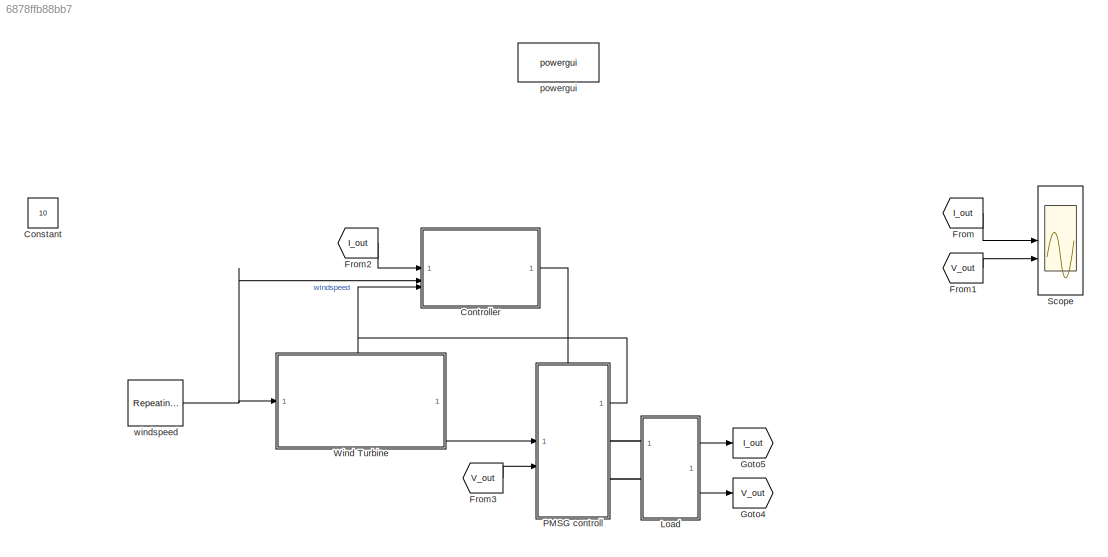
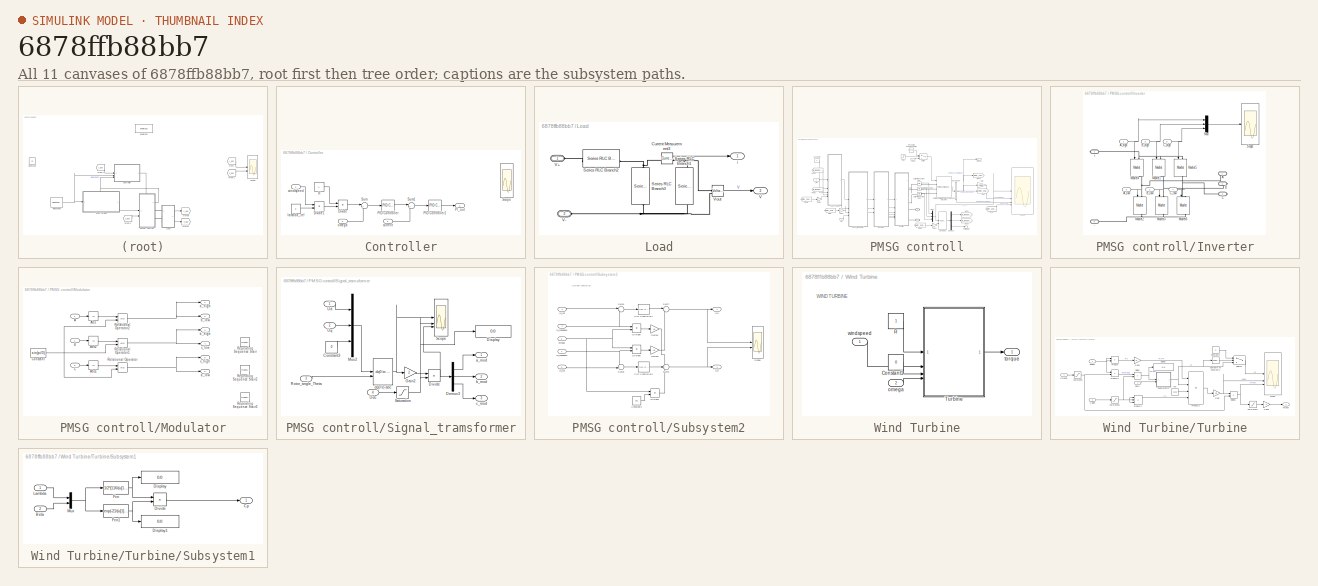
[diagram: thumbnail index - all 11 canvases of the model, root first then tree order]
MODEL slx_6878ffb88bb7
KIND model
CONFIG AbsTol = auto
CONFIG EnableMultiTasking = off
CONFIG FixedStep = auto
CONFIG InitFcn = Ld=0.3;\nLq=0.2;\nRs=2;\n \np=1;\nPsi=0.2;\n \nJ=0.0005;\nFF=0.0001;\n \nKP_Id=1.28;\nKI_Id=16.21;\nKP_Iq=0.94;\nKI_Iq=4.90;\n \nKP_w=0.0784880455322167;\nKI_w=0.0288211791619406;\n \nf_pwm=1000;\nUdc=50;\nNs=1;\nNp=1;\nR1=0.29;\nC0=2100;\nCv=623;\nR2=1.92;\nC2=172;\n\n%data_omega = load('max_CP_omega.mat');\n\n%max_CP_omega = data_omega.max_CP_omega;\n\n%max_CP_omega_param = Simulink.Parameter(max_CP_omega);\n\n%max_CP_omega_para...<+45ch>
CONFIG MaxStep = auto
CONFIG MinStep = auto
CONFIG RelTol = 1e-3
CONFIG SampleTimeConstraint = Unconstrained
CONFIG SolverName = VariableStepAuto
CONFIG StartTime = 0.0
CONFIG StopTime = 5
BLOCK [Constant] Constant
  Value = 10
BLOCK [SubSystem] Controller
BLOCK [Product] Controller/Divide
  Inputs = /*
BLOCK [Product] Controller/Divide1
  Inputs = **
  NameLocation = top
BLOCK [Reference] Controller/PID Controller  REF=slpidlib/PID Controller
  LibrarySourceBlock = simulink/Continuous/PID Controller
  SourceBlock = slpidlib/PID Controller
  SourceType = PID 1dof
BLOCK [Reference] Controller/PID Controller1  REF=slpidlib/PID Controller
  LibrarySourceBlock = simulink/Continuous/PID Controller
  SourceBlock = slpidlib/PID Controller
  SourceType = PID 1dof
BLOCK [Outport] Controller/PI_out
BLOCK [Constant] Controller/R
BLOCK [Scope] Controller/Scope
  Floating = off
  NumInputPorts = 5
  ScopeSpecificationString = Simulink.scopes.TimeScopeBlockCfg('CurrentConfiguration', extmgr.ConfigurationSet(extmgr.Configuration('Core','General UI',true),extmgr.Configuration('Core','Source UI',true),extmgr.Configuration('Sources','WiredSimulink',true,'DataLoggingVariableName','ScopeData3'),extmgr.Configuration('Visuals','Time Domain',true,'SerializedDisplays',{struct('MinYLimReal','70.00000','MaxYLimReal','90.00000','YLa...<+4853ch>
BLOCK [Sum] Controller/Sum
  Inputs = |+-
BLOCK [Sum] Controller/Sum1
  Inputs = |+-
BLOCK [Inport] Controller/current
BLOCK [Constant] Controller/lambda_ref
  Value = 8
BLOCK [Inport] Controller/omega
  Port = 3
BLOCK [Inport] Controller/windspeed
  Port = 2
BLOCK [From] From
  GotoTag = I_out
BLOCK [From] From1
  GotoTag = V_out
BLOCK [From] From2
  GotoTag = I_out
BLOCK [From] From3
  GotoTag = V_out
BLOCK [Goto] Goto4
  GotoTag = V_out
BLOCK [Goto] Goto5
  GotoTag = I_out
BLOCK [SubSystem] Load
BLOCK [Reference] Load/ Vout  REF=spsVoltageMeasurementLib/Voltage Measurement
  LibrarySourceBlock = sps_lib/Sensors and Measurements/Voltage Measurement
  SourceBlock = spsVoltageMeasurementLib/Voltage Measurement
  SourceType = Voltage Measurement
  UserDataPersistent = on
BLOCK [Reference] Load/Current Measurement3  REF=spsCurrentMeasurementLib/Current Measurement
  LibrarySourceBlock = sps_lib/Sensors and Measurements/Current Measurement
  SourceBlock = spsCurrentMeasurementLib/Current Measurement
  SourceType = Current Measurement
  UserDataPersistent = on
BLOCK [Reference] Load/Series RLC Branch1  REF=spsSeriesRLCBranchLib/Series RLC Branch
  LibrarySourceBlock = sps_lib/Passives/Series RLC Branch
  NameLocation = left
  SourceBlock = spsSeriesRLCBranchLib/Series RLC Branch
  SourceType = Series RLC Branch
BLOCK [Reference] Load/Series RLC Branch2  REF=spsSeriesRLCBranchLib/Series RLC Branch
  LibrarySourceBlock = sps_lib/Passives/Series RLC Branch
  SourceBlock = spsSeriesRLCBranchLib/Series RLC Branch
  SourceType = Series RLC Branch
BLOCK [Reference] Load/Series RLC Branch3  REF=spsSeriesRLCBranchLib/Series RLC Branch
  LibrarySourceBlock = sps_lib/Passives/Series RLC Branch
  NameLocation = left
  SourceBlock = spsSeriesRLCBranchLib/Series RLC Branch
  SourceType = Series RLC Branch
BLOCK [Outport] Load/V
  Port = 2
BLOCK [PMIOPort] Load/V+
  Side = Left
BLOCK [PMIOPort] Load/V-
  Port = 2
  Side = Left
BLOCK [Outport] Load/i
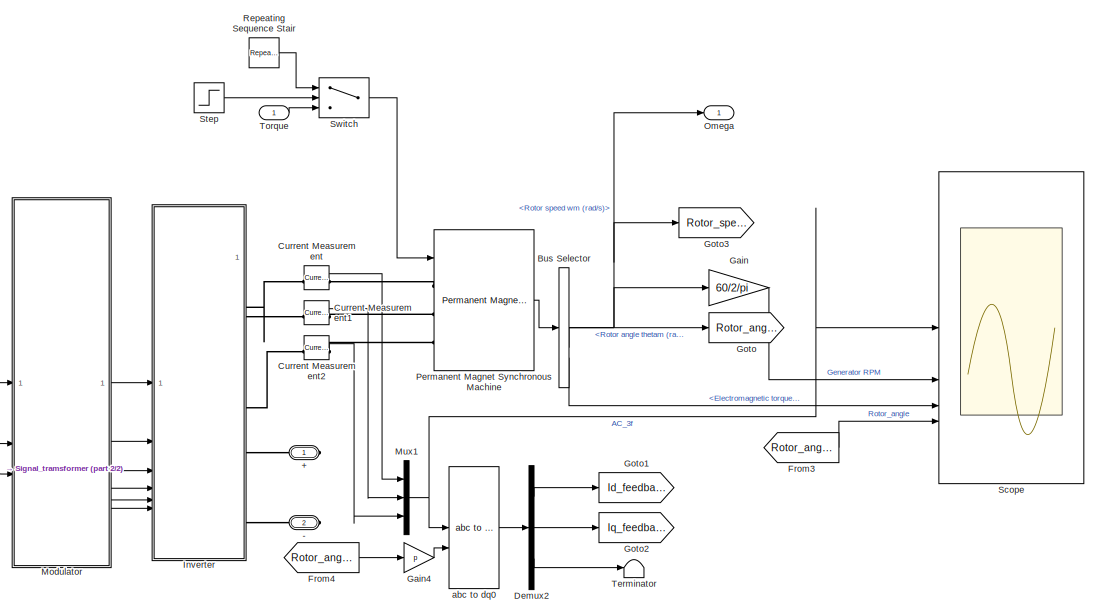
[diagram: PMSG controll - part 1/2, center side, full height]
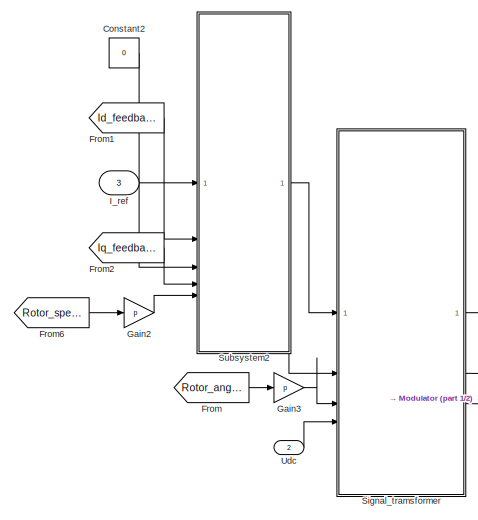
[diagram: PMSG controll - part 2/2, left side, full height]
BLOCK [SubSystem] PMSG controll
  PortSchema = {"entries":[{"content":{"sides":[{"content":{"connectorIds":["In1","In2"]},"type":"ConnectorPlacement.EquallySpacedRectSide","uuid":"6ff45732-1fbe-44e6-bbf0-a97c0cfc251c"},{"content":{"connectorIds":["Out1","RConn1","RConn2"],"side":"RIGHT"},"type":"ConnectorPlacement.EquallySpacedRectSide","uuid":"615f7fbd-60ca-4bdf-8315-88a0e11d104a"},{"content":{"connectorIds":["In3"],"side":"TOP"},"type":"Conn...<+269ch>
BLOCK [PMIOPort] PMSG controll/+
  Side = Right
BLOCK [PMIOPort] PMSG controll/-
  Port = 2
  Side = Right
BLOCK [BusSelector] PMSG controll/Bus Selector
  OutputSignals = Rotor speed wm (rad/s),Rotor angle thetam (rad),Electromagnetic torque Te (N*m)
BLOCK [Constant] PMSG controll/Constant2
  Value = 0
BLOCK [Reference] PMSG controll/Current Measurement  REF=spsCurrentMeasurementLib/Current Measurement
  LibrarySourceBlock = sps_lib/Sensors and Measurements/Current Measurement
  SourceBlock = spsCurrentMeasurementLib/Current Measurement
  SourceType = Current Measurement
  UserDataPersistent = on
BLOCK [Reference] PMSG controll/Current Measurement1  REF=spsCurrentMeasurementLib/Current Measurement
  LibrarySourceBlock = sps_lib/Sensors and Measurements/Current Measurement
  SourceBlock = spsCurrentMeasurementLib/Current Measurement
  SourceType = Current Measurement
  UserDataPersistent = on
BLOCK [Reference] PMSG controll/Current Measurement2  REF=spsCurrentMeasurementLib/Current Measurement
  LibrarySourceBlock = sps_lib/Sensors and Measurements/Current Measurement
  SourceBlock = spsCurrentMeasurementLib/Current Measurement
  SourceType = Current Measurement
  UserDataPersistent = on
BLOCK [Demux] PMSG controll/Demux2
  Outputs = 3
BLOCK [From] PMSG controll/From
  GotoTag = Rotor_angle
BLOCK [From] PMSG controll/From1
  GotoTag = Id_feedback
BLOCK [From] PMSG controll/From2
  GotoTag = Iq_feedback
BLOCK [From] PMSG controll/From3
  GotoTag = Rotor_angle
BLOCK [From] PMSG controll/From4
  GotoTag = Rotor_angle
BLOCK [From] PMSG controll/From6
  GotoTag = Rotor_speed
BLOCK [Gain] PMSG controll/Gain
  Gain = 60/2/pi
BLOCK [Gain] PMSG controll/Gain2
  Gain = p
BLOCK [Gain] PMSG controll/Gain3
  Gain = p
BLOCK [Gain] PMSG controll/Gain4
  Gain = p
BLOCK [Goto] PMSG controll/Goto
  GotoTag = Rotor_angle
BLOCK [Goto] PMSG controll/Goto1
  GotoTag = Id_feedback
BLOCK [Goto] PMSG controll/Goto2
  GotoTag = Iq_feedback
BLOCK [Goto] PMSG controll/Goto3
  GotoTag = Rotor_speed
BLOCK [Inport] PMSG controll/I_ref
  Port = 3
BLOCK [SubSystem] PMSG controll/Inverter
BLOCK [Inport] PMSG controll/Inverter/ B_high
  Port = 3
BLOCK [PMIOPort] PMSG controll/Inverter/+
  Port = 4
  Side = Right
BLOCK [PMIOPort] PMSG controll/Inverter/-
  Port = 5
  Side = Right
BLOCK [PMIOPort] PMSG controll/Inverter/A
  Side = Right
BLOCK [Inport] PMSG controll/Inverter/A_high
BLOCK [Inport] PMSG controll/Inverter/A_low
  Port = 6
BLOCK [PMIOPort] PMSG controll/Inverter/B
  Port = 2
  Side = Right
BLOCK [Inport] PMSG controll/Inverter/B_low
  Port = 2
BLOCK [PMIOPort] PMSG controll/Inverter/C
  Port = 3
  Side = Right
BLOCK [Inport] PMSG controll/Inverter/C_high
  Port = 5
BLOCK [Inport] PMSG controll/Inverter/C_low
  Port = 4
BLOCK [Reference] PMSG controll/Inverter/Mosfet1  REF=spsMosfetLib/Mosfet
  LibrarySourceBlock = sps_lib/Power Electronics/Mosfet
  NameLocation = left
  SourceBlock = spsMosfetLib/Mosfet
  SourceType = Mosfet
BLOCK [Reference] PMSG controll/Inverter/Mosfet2  REF=spsMosfetLib/Mosfet
  LibrarySourceBlock = sps_lib/Power Electronics/Mosfet
  NameLocation = left
  SourceBlock = spsMosfetLib/Mosfet
  SourceType = Mosfet
BLOCK [Reference] PMSG controll/Inverter/Mosfet3  REF=spsMosfetLib/Mosfet
  LibrarySourceBlock = sps_lib/Power Electronics/Mosfet
  NameLocation = left
  SourceBlock = spsMosfetLib/Mosfet
  SourceType = Mosfet
BLOCK [Reference] PMSG controll/Inverter/Mosfet4  REF=spsMosfetLib/Mosfet
  LibrarySourceBlock = sps_lib/Power Electronics/Mosfet
  NameLocation = left
  SourceBlock = spsMosfetLib/Mosfet
  SourceType = Mosfet
BLOCK [Reference] PMSG controll/Inverter/Mosfet5  REF=spsMosfetLib/Mosfet
  LibrarySourceBlock = sps_lib/Power Electronics/Mosfet
  NameLocation = left
  SourceBlock = spsMosfetLib/Mosfet
  SourceType = Mosfet
BLOCK [Reference] PMSG controll/Inverter/Mosfet6  REF=spsMosfetLib/Mosfet
  LibrarySourceBlock = sps_lib/Power Electronics/Mosfet
  NameLocation = left
  SourceBlock = spsMosfetLib/Mosfet
  SourceType = Mosfet
BLOCK [Mux] PMSG controll/Inverter/Mux
  DisplayOption = bar
  Inputs = 3
BLOCK [Scope] PMSG controll/Inverter/Scope
  Floating = off
  NumInputPorts = 1
  ScopeSpecificationString = Simulink.scopes.TimeScopeBlockCfg('CurrentConfiguration', extmgr.ConfigurationSet(extmgr.Configuration('Core','General UI',true),extmgr.Configuration('Core','Source UI',true),extmgr.Configuration('Sources','WiredSimulink',true,'DataLoggingVariableName','ScopeData1'),extmgr.Configuration('Visuals','Time Domain',true,'SerializedDisplays',{struct('MinYLimReal','-0.04809','MaxYLimReal','1.0241','YLabe...<+1454ch>
BLOCK [SubSystem] PMSG controll/Modulator
BLOCK [Inport] PMSG controll/Modulator/A
BLOCK [Abs] PMSG controll/Modulator/Abs
  SaturateOnIntegerOverflow = off
BLOCK [Abs] PMSG controll/Modulator/Abs1
  SaturateOnIntegerOverflow = off
BLOCK [Abs] PMSG controll/Modulator/Abs2
  SaturateOnIntegerOverflow = off
BLOCK [Inport] PMSG controll/Modulator/B
  Port = 2
BLOCK [Inport] PMSG controll/Modulator/C
  Port = 3
BLOCK [Constant] PMSG controll/Modulator/Constant
  Value = sin(pi/3)
BLOCK [RelationalOperator] PMSG controll/Modulator/Relational Operator
  InputSameDT = off
  OutDataTypeStr = boolean
  RndMeth = Simplest
BLOCK [RelationalOperator] PMSG controll/Modulator/Relational Operator1
  InputSameDT = off
  OutDataTypeStr = boolean
  RndMeth = Simplest
BLOCK [RelationalOperator] PMSG controll/Modulator/Relational Operator2
  InputSameDT = off
  OutDataTypeStr = boolean
  RndMeth = Simplest
BLOCK [Reference] PMSG controll/Modulator/Repeating Sequence Stair  REF=simulink/Sources/Repeating
Sequence
Stair
  SourceBlock = simulink/Sources/Repeating\nSequence\nStair
  SourceType = Repeating Sequence Stair
BLOCK [Reference] PMSG controll/Modulator/Repeating Sequence Stair2  REF=simulink/Sources/Repeating
Sequence
Stair
  SourceBlock = simulink/Sources/Repeating\nSequence\nStair
  SourceType = Repeating Sequence Stair
BLOCK [Reference] PMSG controll/Modulator/Repeating Sequence Stair3  REF=simulink/Sources/Repeating
Sequence
Stair
  SourceBlock = simulink/Sources/Repeating\nSequence\nStair
  SourceType = Repeating Sequence Stair
BLOCK [Outport] PMSG controll/Modulator/a_high
BLOCK [Outport] PMSG controll/Modulator/a_low
  Port = 6
BLOCK [Outport] PMSG controll/Modulator/b_high
  Port = 3
BLOCK [Outport] PMSG controll/Modulator/b_low
  Port = 2
BLOCK [Outport] PMSG controll/Modulator/c_high
  Port = 5
BLOCK [Outport] PMSG controll/Modulator/c_low
  Port = 4
BLOCK [Mux] PMSG controll/Mux1
  DisplayOption = bar
  Inputs = 3
BLOCK [Outport] PMSG controll/Omega
BLOCK [Reference] PMSG controll/Permanent Magnet Synchronous Machine  REF=spsPermanentMagnetSynchronousMachineLib/Permanent Magnet
Synchronous Machine
  LibrarySourceBlock = sps_lib/Electrical Machines/Permanent Magnet\nSynchronous Machine
  SourceBlock = spsPermanentMagnetSynchronousMachineLib/Permanent Magnet\nSynchronous Machine
  SourceType = Permanent Magnet Synchronous Machine
BLOCK [Reference] PMSG controll/Repeating Sequence Stair  REF=simulink/Sources/Repeating
Sequence
Stair
  SourceBlock = simulink/Sources/Repeating\nSequence\nStair
  SourceType = Repeating Sequence Stair
BLOCK [Scope] PMSG controll/Scope
  Floating = off
  NumInputPorts = 4
  ScopeSpecificationString = Simulink.scopes.TimeScopeBlockCfg('CurrentConfiguration', extmgr.ConfigurationSet(extmgr.Configuration('Core','General UI',true),extmgr.Configuration('Core','Source UI',true),extmgr.Configuration('Sources','WiredSimulink',true,'DataLoggingVariableName','ScopeData1'),extmgr.Configuration('Visuals','Time Domain',true,'SerializedDisplays',{struct('MinYLimReal','-1.22156','MaxYLimReal','1.34994','YLab...<+3573ch>
BLOCK [SubSystem] PMSG controll/Signal_tramsformer
BLOCK [Constant] PMSG controll/Signal_tramsformer/Constant3
  Value = 0
BLOCK [Demux] PMSG controll/Signal_tramsformer/Demux3
  Outputs = 3
BLOCK [Display] PMSG controll/Signal_tramsformer/Display
  Decimation = 1
BLOCK [Product] PMSG controll/Signal_tramsformer/Divide
  Inputs = */
BLOCK [Gain] PMSG controll/Signal_tramsformer/Gain2
  Gain = 2
BLOCK [Mux] PMSG controll/Signal_tramsformer/Mux2
  DisplayOption = bar
  Inputs = 3
BLOCK [Inport] PMSG controll/Signal_tramsformer/Rotor_angle_Theta
  Port = 3
BLOCK [Saturate] PMSG controll/Signal_tramsformer/Saturation
  LowerLimit = 1e-1
  UpperLimit = inf
BLOCK [Scope] PMSG controll/Signal_tramsformer/Scope
  Floating = off
  NumInputPorts = 3
  ScopeSpecificationString = Simulink.scopes.TimeScopeBlockCfg('CurrentConfiguration', extmgr.ConfigurationSet(extmgr.Configuration('Core','General UI',true),extmgr.Configuration('Core','Source UI',true),extmgr.Configuration('Sources','WiredSimulink',true,'DataLoggingVariableName','ScopeData2'),extmgr.Configuration('Visuals','Time Domain',true,'SerializedDisplays',{struct('MinYLimReal','-95829.11129','MaxYLimReal','165523.010...<+2887ch>
BLOCK [Inport] PMSG controll/Signal_tramsformer/Ud
BLOCK [Inport] PMSG controll/Signal_tramsformer/Udc
  Port = 4
BLOCK [Inport] PMSG controll/Signal_tramsformer/Uq
  Port = 2
BLOCK [Outport] PMSG controll/Signal_tramsformer/a_mod
BLOCK [Outport] PMSG controll/Signal_tramsformer/b_mod
  Port = 2
BLOCK [Outport] PMSG controll/Signal_tramsformer/c_mod
  Port = 3
BLOCK [Reference] PMSG controll/Signal_tramsformer/dq0 to abc  REF=spsdq0toabcLib/dq0 to abc
  LibrarySourceBlock = sps_lib/Control/dq0 to abc
  SourceBlock = spsdq0toabcLib/dq0 to abc
  SourceType = dq0 to abc Transformation
BLOCK [Step] PMSG controll/Step
  After = 0
  Before = 1
  SampleTime = 0
  Time = 5
BLOCK [SubSystem] PMSG controll/Subsystem2
BLOCK [Constant] PMSG controll/Subsystem2/Constant3
  Value = Psi
BLOCK [Product] PMSG controll/Subsystem2/Divide4
  Inputs = **
BLOCK [Product] PMSG controll/Subsystem2/Divide5
  Inputs = **
BLOCK [Product] PMSG controll/Subsystem2/Divide6
  Inputs = **
BLOCK [Gain] PMSG controll/Subsystem2/Gain10
  Gain = Lq
BLOCK [Gain] PMSG controll/Subsystem2/Gain11
  Gain = Ld
BLOCK [Inport] PMSG controll/Subsystem2/Id_feedback
  Port = 2
BLOCK [Inport] PMSG controll/Subsystem2/Id_ref
BLOCK [Inport] PMSG controll/Subsystem2/Iq_feedback
  Port = 4
BLOCK [Inport] PMSG controll/Subsystem2/Iq_ref
  Port = 3
BLOCK [Reference] PMSG controll/Subsystem2/PID Controller1  REF=slpidlib/PID Controller
  SourceBlock = slpidlib/PID Controller
  SourceType = PID 1dof
BLOCK [Reference] PMSG controll/Subsystem2/PID Controller3  REF=slpidlib/PID Controller
  SourceBlock = slpidlib/PID Controller
  SourceType = PID 1dof
BLOCK [Scope] PMSG controll/Subsystem2/Scope
  Floating = off
  NumInputPorts = 2
  ScopeSpecificationString = Simulink.scopes.TimeScopeBlockCfg('CurrentConfiguration', extmgr.ConfigurationSet(extmgr.Configuration('Core','General UI',true),extmgr.Configuration('Core','Source UI',true),extmgr.Configuration('Sources','WiredSimulink',true,'DataLoggingVariableName','ScopeData4'),extmgr.Configuration('Visuals','Time Domain',true,'SerializedDisplays',{struct('MinYLimReal','-1.00000','MaxYLimReal','1.00000','YLab...<+2042ch>
BLOCK [Sum] PMSG controll/Subsystem2/Sum6
  Inputs = |+-
BLOCK [Sum] PMSG controll/Subsystem2/Sum7
  Inputs = |+-
BLOCK [Sum] PMSG controll/Subsystem2/Sum8
  Inputs = -+|
BLOCK [Sum] PMSG controll/Subsystem2/Sum9
  Inputs = +++
BLOCK [Outport] PMSG controll/Subsystem2/Ud
BLOCK [Outport] PMSG controll/Subsystem2/Uq
  Port = 2
BLOCK [Inport] PMSG controll/Subsystem2/omega
  Port = 5
BLOCK [Switch] PMSG controll/Switch
  Criteria = u2 > Threshold
  InputSameDT = off
  SaturateOnIntegerOverflow = off
  Threshold = 0.5
BLOCK [Terminator] PMSG controll/Terminator
BLOCK [Inport] PMSG controll/Torque
BLOCK [Inport] PMSG controll/Udc
  Port = 2
BLOCK [Reference] PMSG controll/abc to dq0  REF=spsabctodq0Lib/abc to dq0
  LibrarySourceBlock = sps_lib/Control/abc to dq0
  SourceBlock = spsabctodq0Lib/abc to dq0
  SourceType = abc to dq0 Transformation
BLOCK [Scope] Scope
  Floating = off
  NumInputPorts = 2
  ScopeSpecificationString = Simulink.scopes.TimeScopeBlockCfg('CurrentConfiguration', extmgr.ConfigurationSet(extmgr.Configuration('Core','General UI',true),extmgr.Configuration('Core','Source UI',true),extmgr.Configuration('Sources','WiredSimulink',true,'DataLoggingVariableName','ScopeData2'),extmgr.Configuration('Visuals','Time Domain',true,'SerializedDisplays',{struct('MinYLimReal','-2.84896','MaxYLimReal','5.87211','YLab...<+2040ch>
BLOCK [SubSystem] Wind Turbine
  PortSchema = {"entries":[{"content":{"sides":[{"content":{"connectorIds":["In1"]},"type":"ConnectorPlacement.EquallySpacedRectSide","uuid":"d9607854-6c60-486c-bfea-e5bdfd6c8fa9"},{"content":{"connectorIds":["Out1"],"side":"RIGHT"},"type":"ConnectorPlacement.EquallySpacedRectSide","uuid":"5fa891cc-5ceb-404b-bebb-ba93c08d2f38"},{"content":{"connectorIds":["In2"],"side":"TOP"},"type":"ConnectorPlacement.EquallySp...<+245ch>
BLOCK [Constant] Wind Turbine/Constant1
  Value = 0
BLOCK [Constant] Wind Turbine/R
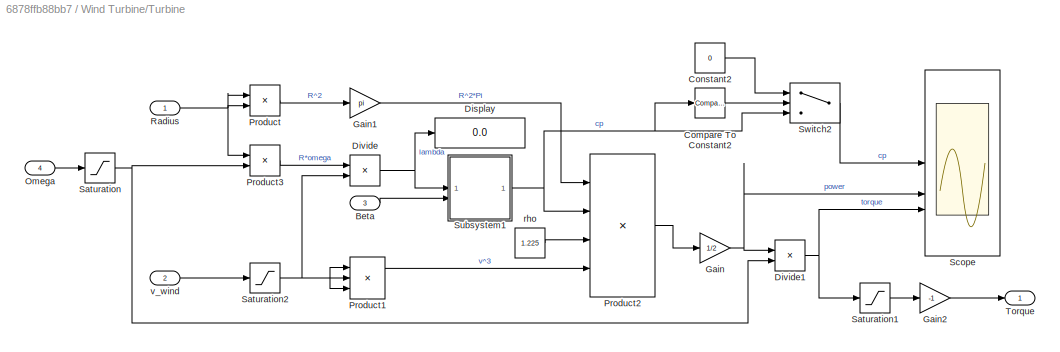
BLOCK [SubSystem] Wind Turbine/Turbine
BLOCK [Inport] Wind Turbine/Turbine/Beta
  Port = 3
BLOCK [Reference] Wind Turbine/Turbine/Compare To Constant2  REF=simulink/Logic and Bit
Operations/Compare
To Constant
  SourceBlock = simulink/Logic and Bit\nOperations/Compare\nTo Constant
  SourceType = Compare To Constant
BLOCK [Constant] Wind Turbine/Turbine/Constant2
  Value = 0
BLOCK [Display] Wind Turbine/Turbine/Display
  Decimation = 1
BLOCK [Product] Wind Turbine/Turbine/Divide
  Inputs = */
BLOCK [Product] Wind Turbine/Turbine/Divide1
  Inputs = */
BLOCK [Gain] Wind Turbine/Turbine/Gain
  Gain = 1/2
BLOCK [Gain] Wind Turbine/Turbine/Gain1
  Gain = pi
BLOCK [Gain] Wind Turbine/Turbine/Gain2
  Gain = -1
BLOCK [Inport] Wind Turbine/Turbine/Omega
  Port = 4
BLOCK [Product] Wind Turbine/Turbine/Product
BLOCK [Product] Wind Turbine/Turbine/Product1
  Inputs = 3
BLOCK [Product] Wind Turbine/Turbine/Product2
  Inputs = 4
BLOCK [Product] Wind Turbine/Turbine/Product3
BLOCK [Inport] Wind Turbine/Turbine/Radius
BLOCK [Saturate] Wind Turbine/Turbine/Saturation
  LowerLimit = 1e-6
  UpperLimit = inf
BLOCK [Saturate] Wind Turbine/Turbine/Saturation1
  LowerLimit = 0
  UpperLimit = inf
BLOCK [Saturate] Wind Turbine/Turbine/Saturation2
  LowerLimit = 1e-6
  UpperLimit = inf
BLOCK [Scope] Wind Turbine/Turbine/Scope
  Floating = off
  NumInputPorts = 3
  ScopeSpecificationString = Simulink.scopes.TimeScopeBlockCfg('CurrentConfiguration', extmgr.ConfigurationSet(extmgr.Configuration('Core','General UI',true),extmgr.Configuration('Core','Source UI',true),extmgr.Configuration('Sources','WiredSimulink',true,'DataLoggingVariableName','ScopeData2'),extmgr.Configuration('Visuals','Time Domain',true,'SerializedDisplays',{struct('MinYLimReal','-1.00000','MaxYLimReal','1.00000','YLab...<+2979ch>
BLOCK [SubSystem] Wind Turbine/Turbine/Subsystem1
BLOCK [Inport] Wind Turbine/Turbine/Subsystem1/Beta
  Port = 2
BLOCK [Outport] Wind Turbine/Turbine/Subsystem1/Cp
BLOCK [Display] Wind Turbine/Turbine/Subsystem1/Display
  Decimation = 1
BLOCK [Display] Wind Turbine/Turbine/Subsystem1/Display1
  Decimation = 1
BLOCK [Product] Wind Turbine/Turbine/Subsystem1/Divide
  Inputs = **
BLOCK [Fcn] Wind Turbine/Turbine/Subsystem1/Fcn
  Expr = 1/2*(116/(u[1]+0.08*u[2])-4.06/(1+u[2]^3)-0.4*u[2]-5)
BLOCK [Fcn] Wind Turbine/Turbine/Subsystem1/Fcn1
  Expr = exp(-21/(u[1]+0.08*u[2])+0.735/(u[2]^3+1))
BLOCK [Inport] Wind Turbine/Turbine/Subsystem1/Lambda
BLOCK [Mux] Wind Turbine/Turbine/Subsystem1/Mux
  DisplayOption = bar
  Inputs = 2
BLOCK [Switch] Wind Turbine/Turbine/Switch2
  Criteria = u2 > Threshold
  InputSameDT = off
  SaturateOnIntegerOverflow = off
BLOCK [Outport] Wind Turbine/Turbine/Torque
  VectorParamsAs1DForOutWhenUnconnected = off
BLOCK [Constant] Wind Turbine/Turbine/rho
  Value = 1.225
BLOCK [Inport] Wind Turbine/Turbine/v_wind
  Port = 2
BLOCK [Inport] Wind Turbine/omega
  Port = 2
BLOCK [Outport] Wind Turbine/torque
BLOCK [Inport] Wind Turbine/windspeed
BLOCK [Reference] powergui  REF=spspowerguiLib/powergui
  LibrarySourceBlock = sps_lib/powergui
  Priority = 1
  SourceBlock = spspowerguiLib/powergui
  SourceType = PSB option menu block
BLOCK [Reference] windspeed  REF=simulink/Sources/Repeating
Sequence
Stair
  SourceBlock = simulink/Sources/Repeating\nSequence\nStair
  SourceType = Repeating Sequence Stair
ANNOTATION PMSG controll/Subsystem2: Current controller
ANNOTATION Wind Turbine: WIND TURBINE
LINE Controller/Divide1:1 -> Controller/Divide:2
LINE Controller/Divide:1 -> Controller/Sum:1
LINE Controller/PID Controller1:1 -> Controller/PI_out:1
LINE Controller/PID Controller:1 -> Controller/Sum1:1
LINE Controller/R:1 -> Controller/Divide:1
LINE Controller/Sum1:1 -> Controller/PID Controller1:1
LINE Controller/Sum:1 -> Controller/PID Controller:1
LINE Controller/current:1 -> Controller/Sum1:2
LINE Controller/lambda_ref:1 -> Controller/Divide1:2
LINE Controller/omega:1 -> Controller/Sum:2
LINE Controller/windspeed:1 -> Controller/Divide1:1
LINE Controller:1 -> PMSG controll:3
LINE From1:1 -> Scope:2
LINE From2:1 -> Controller:1
LINE From3:1 -> PMSG controll:2
LINE From:1 -> Scope:1
LINE Load/ Vout:1 -> Load/V:1
LINE Load/Current Measurement3:1 -> Load/i:1
LINE Load:1 -> Goto5:1
LINE Load:2 -> Goto4:1
NET PMSG controll/Bus Selector:1 -> PMSG controll/Gain:1, PMSG controll/Goto3:1, PMSG controll/Omega:1
LINE PMSG controll/Bus Selector:2 -> PMSG controll/Goto:1
LINE PMSG controll/Bus Selector:3 -> PMSG controll/Scope:3
LINE PMSG controll/Constant2:1 -> PMSG controll/Subsystem2:1
LINE PMSG controll/Current Measurement1:1 -> PMSG controll/Mux1:2
LINE PMSG controll/Current Measurement2:1 -> PMSG controll/Mux1:3
LINE PMSG controll/Current Measurement:1 -> PMSG controll/Mux1:1
LINE PMSG controll/Demux2:1 -> PMSG controll/Goto1:1
LINE PMSG controll/Demux2:2 -> PMSG controll/Goto2:1
LINE PMSG controll/Demux2:3 -> PMSG controll/Terminator:1
LINE PMSG controll/From1:1 -> PMSG controll/Subsystem2:2
LINE PMSG controll/From2:1 -> PMSG controll/Subsystem2:4
LINE PMSG controll/From3:1 -> PMSG controll/Scope:4
LINE PMSG controll/From4:1 -> PMSG controll/Gain4:1
LINE PMSG controll/From6:1 -> PMSG controll/Gain2:1
LINE PMSG controll/From:1 -> PMSG controll/Gain3:1
LINE PMSG controll/Gain2:1 -> PMSG controll/Subsystem2:5
LINE PMSG controll/Gain3:1 -> PMSG controll/Signal_tramsformer:3
LINE PMSG controll/Gain4:1 -> PMSG controll/abc to dq0:2
LINE PMSG controll/Gain:1 -> PMSG controll/Scope:2
LINE PMSG controll/I_ref:1 -> PMSG controll/Subsystem2:3
NET PMSG controll/Inverter/ B_high:1 -> PMSG controll/Inverter/Mosfet1:1, PMSG controll/Inverter/Mux:2
NET PMSG controll/Inverter/A_high:1 -> PMSG controll/Inverter/Mosfet4:1, PMSG controll/Inverter/Mux:1
LINE PMSG controll/Inverter/A_low:1 -> PMSG controll/Inverter/Mosfet2:1
LINE PMSG controll/Inverter/B_low:1 -> PMSG controll/Inverter/Mosfet3:1
NET PMSG controll/Inverter/C_high:1 -> PMSG controll/Inverter/Mosfet5:1, PMSG controll/Inverter/Mux:3
LINE PMSG controll/Inverter/C_low:1 -> PMSG controll/Inverter/Mosfet6:1
LINE PMSG controll/Inverter/Mux:1 -> PMSG controll/Inverter/Scope:1
LINE PMSG controll/Modulator/A:1 -> PMSG controll/Modulator/Abs:1
LINE PMSG controll/Modulator/Abs1:1 -> PMSG controll/Modulator/Relational Operator:1
LINE PMSG controll/Modulator/Abs2:1 -> PMSG controll/Modulator/Relational Operator1:1
LINE PMSG controll/Modulator/Abs:1 -> PMSG controll/Modulator/Relational Operator2:1
LINE PMSG controll/Modulator/B:1 -> PMSG controll/Modulator/Abs2:1
LINE PMSG controll/Modulator/C:1 -> PMSG controll/Modulator/Abs1:1
NET PMSG controll/Modulator/Constant:1 -> PMSG controll/Modulator/Relational Operator1:2, PMSG controll/Modulator/Relational Operator2:2, PMSG controll/Modulator/Relational Operator:2
NET PMSG controll/Modulator/Relational Operator1:1 -> PMSG controll/Modulator/b_high:1, PMSG controll/Modulator/c_low:1
NET PMSG controll/Modulator/Relational Operator2:1 -> PMSG controll/Modulator/a_high:1, PMSG controll/Modulator/b_low:1
NET PMSG controll/Modulator/Relational Operator:1 -> PMSG controll/Modulator/a_low:1, PMSG controll/Modulator/c_high:1
LINE PMSG controll/Modulator:1 -> PMSG controll/Inverter:1
LINE PMSG controll/Modulator:2 -> PMSG controll/Inverter:2
LINE PMSG controll/Modulator:3 -> PMSG controll/Inverter:3
LINE PMSG controll/Modulator:4 -> PMSG controll/Inverter:4
LINE PMSG controll/Modulator:5 -> PMSG controll/Inverter:5
LINE PMSG controll/Modulator:6 -> PMSG controll/Inverter:6
NET PMSG controll/Mux1:1 -> PMSG controll/Scope:1, PMSG controll/abc to dq0:1
LINE PMSG controll/Permanent Magnet Synchronous Machine:1 -> PMSG controll/Bus Selector:1
LINE PMSG controll/Repeating Sequence Stair:1 -> PMSG controll/Switch:1
LINE PMSG controll/Signal_tramsformer/Constant3:1 -> PMSG controll/Signal_tramsformer/Mux2:3
LINE PMSG controll/Signal_tramsformer/Demux3:1 -> PMSG controll/Signal_tramsformer/a_mod:1
LINE PMSG controll/Signal_tramsformer/Demux3:2 -> PMSG controll/Signal_tramsformer/b_mod:1
LINE PMSG controll/Signal_tramsformer/Demux3:3 -> PMSG controll/Signal_tramsformer/c_mod:1
NET PMSG controll/Signal_tramsformer/Divide:1 -> PMSG controll/Signal_tramsformer/Demux3:1, PMSG controll/Signal_tramsformer/Scope:3
LINE PMSG controll/Signal_tramsformer/Gain2:1 -> PMSG controll/Signal_tramsformer/Divide:1
LINE PMSG controll/Signal_tramsformer/Mux2:1 -> PMSG controll/Signal_tramsformer/dq0 to abc:1
LINE PMSG controll/Signal_tramsformer/Rotor_angle_Theta:1 -> PMSG controll/Signal_tramsformer/dq0 to abc:2
NET PMSG controll/Signal_tramsformer/Saturation:1 -> PMSG controll/Signal_tramsformer/Display:1, PMSG controll/Signal_tramsformer/Divide:2, PMSG controll/Signal_tramsformer/Scope:2
LINE PMSG controll/Signal_tramsformer/Ud:1 -> PMSG controll/Signal_tramsformer/Mux2:1
LINE PMSG controll/Signal_tramsformer/Udc:1 -> PMSG controll/Signal_tramsformer/Saturation:1
LINE PMSG controll/Signal_tramsformer/Uq:1 -> PMSG controll/Signal_tramsformer/Mux2:2
NET PMSG controll/Signal_tramsformer/dq0 to abc:1 -> PMSG controll/Signal_tramsformer/Gain2:1, PMSG controll/Signal_tramsformer/Scope:1
LINE PMSG controll/Signal_tramsformer:1 -> PMSG controll/Modulator:1
LINE PMSG controll/Signal_tramsformer:2 -> PMSG controll/Modulator:2
LINE PMSG controll/Signal_tramsformer:3 -> PMSG controll/Modulator:3
LINE PMSG controll/Step:1 -> PMSG controll/Switch:2
LINE PMSG controll/Subsystem2/Constant3:1 -> PMSG controll/Subsystem2/Divide4:2
LINE PMSG controll/Subsystem2/Divide4:1 -> PMSG controll/Subsystem2/Sum9:3
LINE PMSG controll/Subsystem2/Divide5:1 -> PMSG controll/Subsystem2/Gain11:1
LINE PMSG controll/Subsystem2/Divide6:1 -> PMSG controll/Subsystem2/Gain10:1
LINE PMSG controll/Subsystem2/Gain10:1 -> PMSG controll/Subsystem2/Sum7:2
LINE PMSG controll/Subsystem2/Gain11:1 -> PMSG controll/Subsystem2/Sum9:1
NET PMSG controll/Subsystem2/Id_feedback:1 -> PMSG controll/Subsystem2/Divide5:1, PMSG controll/Subsystem2/Sum6:2
LINE PMSG controll/Subsystem2/Id_ref:1 -> PMSG controll/Subsystem2/Sum6:1
NET PMSG controll/Subsystem2/Iq_feedback:1 -> PMSG controll/Subsystem2/Divide6:2, PMSG controll/Subsystem2/Sum8:1
LINE PMSG controll/Subsystem2/Iq_ref:1 -> PMSG controll/Subsystem2/Sum8:2
LINE PMSG controll/Subsystem2/PID Controller1:1 -> PMSG controll/Subsystem2/Sum7:1
LINE PMSG controll/Subsystem2/PID Controller3:1 -> PMSG controll/Subsystem2/Sum9:2
LINE PMSG controll/Subsystem2/Sum6:1 -> PMSG controll/Subsystem2/PID Controller1:1
NET PMSG controll/Subsystem2/Sum7:1 -> PMSG controll/Subsystem2/Scope:1, PMSG controll/Subsystem2/Ud:1
LINE PMSG controll/Subsystem2/Sum8:1 -> PMSG controll/Subsystem2/PID Controller3:1
NET PMSG controll/Subsystem2/Sum9:1 -> PMSG controll/Subsystem2/Scope:2, PMSG controll/Subsystem2/Uq:1
NET PMSG controll/Subsystem2/omega:1 -> PMSG controll/Subsystem2/Divide4:1, PMSG controll/Subsystem2/Divide5:2, PMSG controll/Subsystem2/Divide6:1
LINE PMSG controll/Subsystem2:1 -> PMSG controll/Signal_tramsformer:1
LINE PMSG controll/Subsystem2:2 -> PMSG controll/Signal_tramsformer:2
LINE PMSG controll/Switch:1 -> PMSG controll/Permanent Magnet Synchronous Machine:1
LINE PMSG controll/Torque:1 -> PMSG controll/Switch:3
LINE PMSG controll/Udc:1 -> PMSG controll/Signal_tramsformer:4
LINE PMSG controll/abc to dq0:1 -> PMSG controll/Demux2:1
NET PMSG controll:1 -> Controller:3, Wind Turbine:2
LINE Wind Turbine/Constant1:1 -> Wind Turbine/Turbine:3
LINE Wind Turbine/R:1 -> Wind Turbine/Turbine:1
LINE Wind Turbine/Turbine/Beta:1 -> Wind Turbine/Turbine/Subsystem1:2
LINE Wind Turbine/Turbine/Compare To Constant2:1 -> Wind Turbine/Turbine/Switch2:2
LINE Wind Turbine/Turbine/Constant2:1 -> Wind Turbine/Turbine/Switch2:1
NET Wind Turbine/Turbine/Divide1:1 -> Wind Turbine/Turbine/Saturation1:1, Wind Turbine/Turbine/Scope:3
NET Wind Turbine/Turbine/Divide:1 -> Wind Turbine/Turbine/Display:1, Wind Turbine/Turbine/Subsystem1:1
LINE Wind Turbine/Turbine/Gain1:1 -> Wind Turbine/Turbine/Product2:1
LINE Wind Turbine/Turbine/Gain2:1 -> Wind Turbine/Turbine/Torque:1
NET Wind Turbine/Turbine/Gain:1 -> Wind Turbine/Turbine/Divide1:1, Wind Turbine/Turbine/Scope:2
LINE Wind Turbine/Turbine/Omega:1 -> Wind Turbine/Turbine/Saturation:1
LINE Wind Turbine/Turbine/Product1:1 -> Wind Turbine/Turbine/Product2:4
LINE Wind Turbine/Turbine/Product2:1 -> Wind Turbine/Turbine/Gain:1
LINE Wind Turbine/Turbine/Product3:1 -> Wind Turbine/Turbine/Divide:1
LINE Wind Turbine/Turbine/Product:1 -> Wind Turbine/Turbine/Gain1:1
NET Wind Turbine/Turbine/Radius:1 -> Wind Turbine/Turbine/Product3:1, Wind Turbine/Turbine/Product:1, Wind Turbine/Turbine/Product:2
LINE Wind Turbine/Turbine/Saturation1:1 -> Wind Turbine/Turbine/Gain2:1
NET Wind Turbine/Turbine/Saturation2:1 -> Wind Turbine/Turbine/Divide:2, Wind Turbine/Turbine/Product1:1, Wind Turbine/Turbine/Product1:2, Wind Turbine/Turbine/Product1:3
NET Wind Turbine/Turbine/Saturation:1 -> Wind Turbine/Turbine/Divide1:2, Wind Turbine/Turbine/Product3:2
LINE Wind Turbine/Turbine/Subsystem1/Beta:1 -> Wind Turbine/Turbine/Subsystem1/Mux:2
LINE Wind Turbine/Turbine/Subsystem1/Divide:1 -> Wind Turbine/Turbine/Subsystem1/Cp:1
NET Wind Turbine/Turbine/Subsystem1/Fcn1:1 -> Wind Turbine/Turbine/Subsystem1/Display1:1, Wind Turbine/Turbine/Subsystem1/Divide:2
NET Wind Turbine/Turbine/Subsystem1/Fcn:1 -> Wind Turbine/Turbine/Subsystem1/Display:1, Wind Turbine/Turbine/Subsystem1/Divide:1
LINE Wind Turbine/Turbine/Subsystem1/Lambda:1 -> Wind Turbine/Turbine/Subsystem1/Mux:1
NET Wind Turbine/Turbine/Subsystem1/Mux:1 -> Wind Turbine/Turbine/Subsystem1/Fcn1:1, Wind Turbine/Turbine/Subsystem1/Fcn:1
NET Wind Turbine/Turbine/Subsystem1:1 -> Wind Turbine/Turbine/Compare To Constant2:1, Wind Turbine/Turbine/Product2:2, Wind Turbine/Turbine/Switch2:3
LINE Wind Turbine/Turbine/Switch2:1 -> Wind Turbine/Turbine/Scope:1
LINE Wind Turbine/Turbine/rho:1 -> Wind Turbine/Turbine/Product2:3
LINE Wind Turbine/Turbine/v_wind:1 -> Wind Turbine/Turbine/Saturation2:1
LINE Wind Turbine/Turbine:1 -> Wind Turbine/torque:1
LINE Wind Turbine/omega:1 -> Wind Turbine/Turbine:4
LINE Wind Turbine/windspeed:1 -> Wind Turbine/Turbine:2
LINE Wind Turbine:1 -> PMSG controll:1
NET windspeed:1 -> Controller:2, Wind Turbine:1
PNET net1: Load/ Vout:LConn1 -- Load/Current Measurement3:RConn1 -- Load/Series RLC Branch1:LConn1
PNET net2: Load/ Vout:LConn2 -- Load/Series RLC Branch1:RConn1 -- Load/Series RLC Branch3:RConn1 -- Load/V-:RConn1
PNET net3: Load/Current Measurement3:LConn1 -- Load/Series RLC Branch2:RConn1 -- Load/Series RLC Branch3:LConn1
PLINE Load/Series RLC Branch2:LConn1 -- Load/V+:RConn1
PLINE Load:LConn1 -- PMSG controll:RConn1
PLINE Load:LConn2 -- PMSG controll:RConn2
PLINE PMSG controll/+:RConn1 -- PMSG controll/Inverter:RConn4
PLINE PMSG controll/-:RConn1 -- PMSG controll/Inverter:RConn5
PLINE PMSG controll/Current Measurement1:LConn1 -- PMSG controll/Inverter:RConn2
PLINE PMSG controll/Current Measurement1:RConn1 -- PMSG controll/Permanent Magnet Synchronous Machine:LConn2
PLINE PMSG controll/Current Measurement2:LConn1 -- PMSG controll/Inverter:RConn3
PLINE PMSG controll/Current Measurement2:RConn1 -- PMSG controll/Permanent Magnet Synchronous Machine:LConn3
PLINE PMSG controll/Current Measurement:LConn1 -- PMSG controll/Inverter:RConn1
PLINE PMSG controll/Current Measurement:RConn1 -- PMSG controll/Permanent Magnet Synchronous Machine:LConn1
PNET net4: PMSG controll/Inverter/+:RConn1 -- PMSG controll/Inverter/Mosfet1:LConn1 -- PMSG controll/Inverter/Mosfet4:LConn1 -- PMSG controll/Inverter/Mosfet5:LConn1
PNET net5: PMSG controll/Inverter/-:RConn1 -- PMSG controll/Inverter/Mosfet2:RConn1 -- PMSG controll/Inverter/Mosfet3:RConn1 -- PMSG controll/Inverter/Mosfet6:RConn1
PNET net6: PMSG controll/Inverter/A:RConn1 -- PMSG controll/Inverter/Mosfet2:LConn1 -- PMSG controll/Inverter/Mosfet4:RConn1
PNET net7: PMSG controll/Inverter/B:RConn1 -- PMSG controll/Inverter/Mosfet1:RConn1 -- PMSG controll/Inverter/Mosfet3:LConn1
PNET net8: PMSG controll/Inverter/C:RConn1 -- PMSG controll/Inverter/Mosfet5:RConn1 -- PMSG controll/Inverter/Mosfet6:LConn1
note: NET lines group one-source signal fan-out (src -> all destinations, sorted); 1:1 wires keep LINE; PNET lines group multi-terminal physical nets as a canonical sorted terminal list (undirected conserving connections); 2-terminal nets keep the pairwise PLINE form
